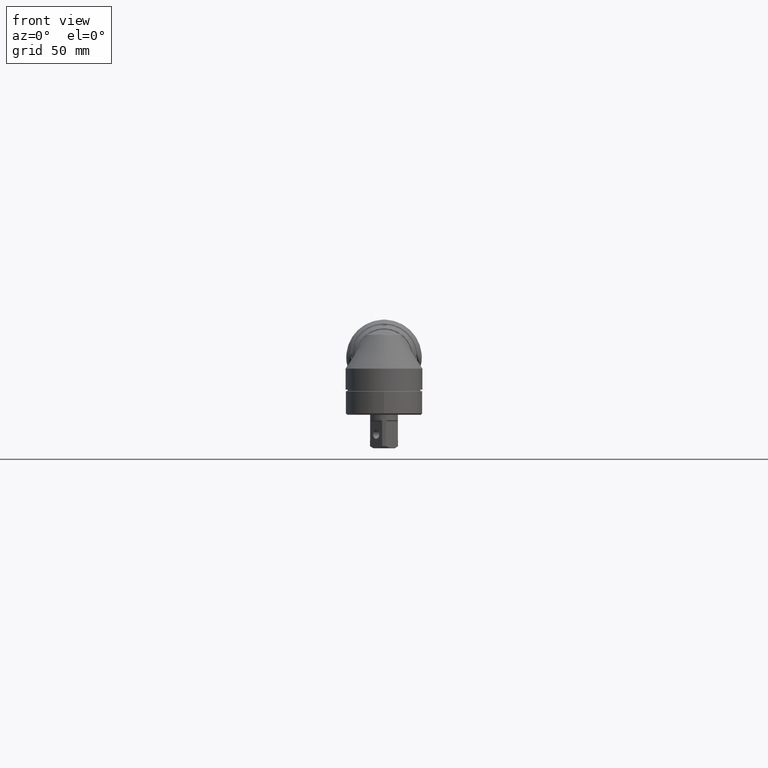
[diagram: clean part render]
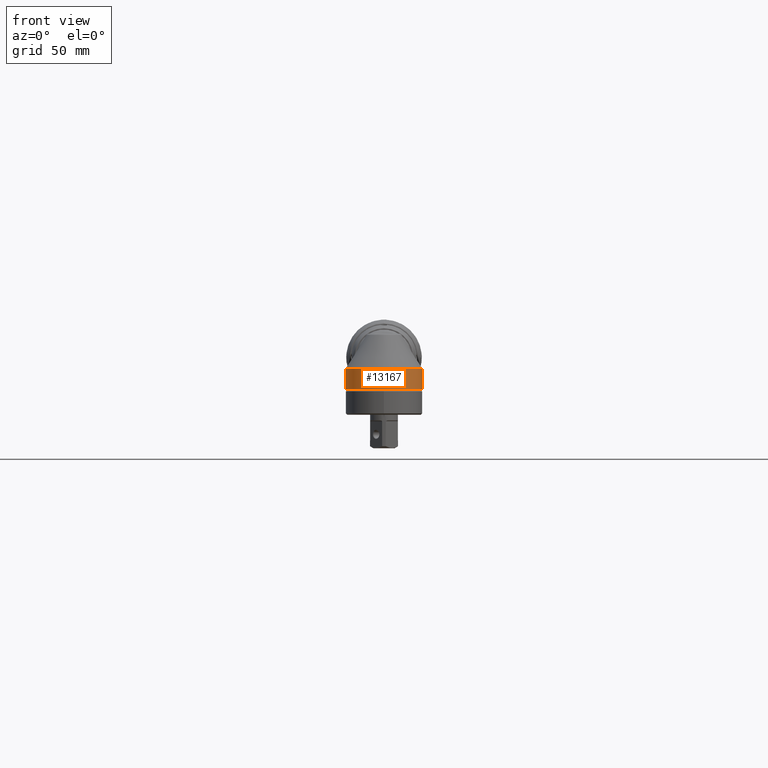
[diagram: same view with one face highlighted and labeled with its STEP entity id]
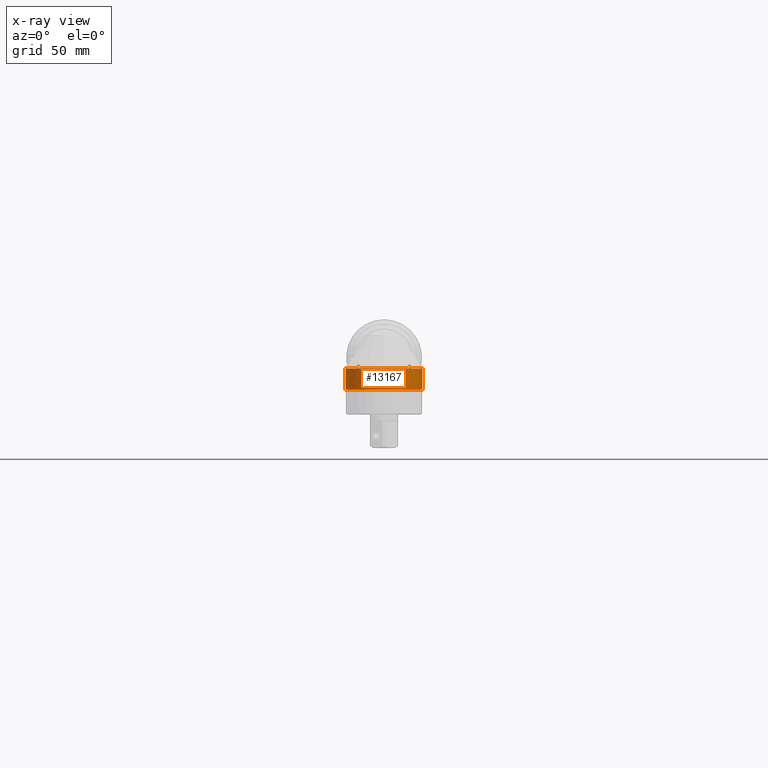
[diagram: x-ray of the same camera — body ghosted, the highlighted face saturated]
A machine part, front view. The second image highlights one B-rep face of the part: STEP entity #13167.
The next image is the same camera in x-ray: the body ghosted, the highlighted face saturated — about 0% of this face is hidden behind the body in this view.
In plain terms, the highlighted cylindrical surface (bore or boss wall) has radius 27.5 mm, axis along (-0, 0, 1).
Its self-contained STEP definition (entity closure, byte-faithful):
#1613=CYLINDRICAL_SURFACE('',#14081,27.5);
#1918=FACE_BOUND('',#3630,.T.);
#2745=FACE_OUTER_BOUND('',#3629,.T.);
#3629=EDGE_LOOP('',(#8843,#8844,#8845,#8846));
#3630=EDGE_LOOP('',(#8847));
#4588=CIRCLE('',#13944,27.5);
#4653=CIRCLE('',#14080,27.5);
#5400=B_SPLINE_CURVE_WITH_KNOTS('',3,(#19982,#19983,#19984,#19985,#19986,
#19987,#19988,#19989),.UNSPECIFIED.,.F.,.F.,(4,2,2,4),(0.,0.122761258447741,
0.219470052528336,0.31241955934614),.UNSPECIFIED.);
#5425=B_SPLINE_CURVE_WITH_KNOTS('',3,(#20583,#20584,#20585,#20586,#20587,
#20588,#20589,#20590,#20591,#20592,#20593,#20594,#20595,#20596,#20597,#20598,
#20599,#20600,#20601,#20602,#20603,#20604,#20605,#20606,#20607,#20608,#20609,
#20610,#20611,#20612,#20613,#20614,#20615,#20616,#20617,#20618,#20619,#20620,
#20621,#20622,#20623,#20624,#20625),.UNSPECIFIED.,.F.,.F.,(4,3,3,3,3,3,
3,3,3,3,3,3,3,3,4),(-16.9105149574467,-16.4117864694954,-16.2703327106149,
-15.4990352647358,-15.3890148739619,-14.7507998875395,-14.5066963858524,
-14.0658769010882,-13.6248385555347,-13.4621669532757,-12.8688074399982,
-12.7429245939191,-11.9063201572751,-11.8615470319402,-11.221186578716),
 .UNSPECIFIED.);
#5431=B_SPLINE_CURVE_WITH_KNOTS('',3,(#20800,#20801,#20802,#20803,#20804,
#20805,#20806,#20807,#20808,#20809),.UNSPECIFIED.,.F.,.F.,(4,2,2,2,4),(0.470813971666849,
0.485401021149331,0.61881696161064,0.742661706200234,0.878901397523358),
 .UNSPECIFIED.);
#5547=VERTEX_POINT('',#19884);
#5549=VERTEX_POINT('',#19898);
#5552=VERTEX_POINT('',#19981);
#5635=VERTEX_POINT('',#20563);
#5650=VERTEX_POINT('',#20895);
#6777=EDGE_CURVE('',#5549,#5547,#4588,.T.);
#6780=EDGE_CURVE('',#5547,#5552,#5400,.T.);
#6883=EDGE_CURVE('',#5552,#5635,#5425,.T.);
#6895=EDGE_CURVE('',#5635,#5549,#5431,.T.);
#6904=EDGE_CURVE('',#5650,#5650,#4653,.T.);
#8843=ORIENTED_EDGE('',*,*,#6883,.F.);
#8844=ORIENTED_EDGE('',*,*,#6780,.F.);
#8845=ORIENTED_EDGE('',*,*,#6777,.F.);
#8846=ORIENTED_EDGE('',*,*,#6895,.F.);
#8847=ORIENTED_EDGE('',*,*,#6904,.T.);
#13167=ADVANCED_FACE('',(#2745,#1918),#1613,.T.);
#13944=AXIS2_PLACEMENT_3D('',#19911,#15680,#15681);
#14080=AXIS2_PLACEMENT_3D('',#20896,#15971,#15972);
#14081=AXIS2_PLACEMENT_3D('',#20897,#15973,#15974);
#15680=DIRECTION('center_axis',(-1.22464679914735E-16,0.,1.));
#15681=DIRECTION('ref_axis',(1.,0.,1.22464679914735E-16));
#15971=DIRECTION('center_axis',(-1.22464679914735E-16,0.,1.));
#15972=DIRECTION('ref_axis',(1.,0.,1.22464679914735E-16));
#15973=DIRECTION('center_axis',(-1.22464679914735E-16,0.,1.));
#15974=DIRECTION('ref_axis',(-1.,0.,0.));
#19884=CARTESIAN_POINT('',(20.2605229686664,18.5946553889908,-7.99999999995198));
#19898=CARTESIAN_POINT('',(-20.2605229686627,18.5946553889999,-7.99999999996319));
#19911=CARTESIAN_POINT('Origin',(9.79717439317885E-16,1.77635683940025E-14,
-8.00000000000001));
#19981=CARTESIAN_POINT('',(18.4712476444672,20.3730952596008,-6.52394095543169));
#19982=CARTESIAN_POINT('Ctrl Pts',(20.2605229686507,18.5946553890299,-8.00000000000001));
#19983=CARTESIAN_POINT('Ctrl Pts',(19.9838316600495,18.8961350613258,-8.00000000000001));
#19984=CARTESIAN_POINT('Ctrl Pts',(19.700269991002,19.190972530852,-7.94036312622453));
#19985=CARTESIAN_POINT('Ctrl Pts',(19.22011227652,19.670452204488,-7.66944577037479));
#19986=CARTESIAN_POINT('Ctrl Pts',(19.0277243897575,19.8556936094131,-7.49838543138955));
#19987=CARTESIAN_POINT('Ctrl Pts',(18.6995729194588,20.1649400390143,-7.05655749506773));
#19988=CARTESIAN_POINT('Ctrl Pts',(18.5711385372075,20.2825292757027,-6.80226098252906));
#19989=CARTESIAN_POINT('Ctrl Pts',(18.4712476444672,20.3730952596007,-6.52394095543169));
#20563=CARTESIAN_POINT('',(-18.4712476444672,20.3730952596007,-6.52394095543167));
#20583=CARTESIAN_POINT('Ctrl Pts',(18.4711656565271,20.3730105492996,-6.52393928281111));
#20584=CARTESIAN_POINT('Ctrl Pts',(18.0323906114884,20.7705061454066,-8.05103776865215));
#20585=CARTESIAN_POINT('Ctrl Pts',(17.4486176766897,21.2732021134993,-9.49051346897047));
#20586=CARTESIAN_POINT('Ctrl Pts',(16.7444605287774,21.8142744947751,-10.8296220001541));
#20587=CARTESIAN_POINT('Ctrl Pts',(16.5447412871036,21.9677382009939,-11.2094317360347));
#20588=CARTESIAN_POINT('Ctrl Pts',(16.3350303558564,22.1245320506927,-11.5815992646434));
#20589=CARTESIAN_POINT('Ctrl Pts',(16.1158685911375,22.2831187734507,-11.9456960468437));
#20590=CARTESIAN_POINT('Ctrl Pts',(14.9208568028338,23.1478362272788,-13.9309873560771));
#20591=CARTESIAN_POINT('Ctrl Pts',(13.4440145039215,24.0657318392733,-15.6749834630757));
#20592=CARTESIAN_POINT('Ctrl Pts',(11.7137283970951,24.8801780348302,-17.1277713390953));
#20593=CARTESIAN_POINT('Ctrl Pts',(11.4669147266482,24.9963533044078,-17.3350017541386));
#20594=CARTESIAN_POINT('Ctrl Pts',(11.2150473116511,25.1103909104923,-17.5361089264828));
#20595=CARTESIAN_POINT('Ctrl Pts',(10.9581399002547,25.2218899827256,-17.7310319115443));
#20596=CARTESIAN_POINT('Ctrl Pts',(9.46785106449619,25.8686826215348,-18.8617565834835));
#20597=CARTESIAN_POINT('Ctrl Pts',(7.80867396534012,26.4307232763146,-19.7856748097847));
#20598=CARTESIAN_POINT('Ctrl Pts',(6.02653977684319,26.8331257460768,-20.4334770301564));
#20599=CARTESIAN_POINT('Ctrl Pts',(5.34491179075205,26.9870360334348,-20.6812474425683));
#20600=CARTESIAN_POINT('Ctrl Pts',(4.64678909359814,27.1171100307443,-20.888983714668));
#20601=CARTESIAN_POINT('Ctrl Pts',(3.93561310416057,27.2189869530659,-21.0520138388896));
#20602=CARTESIAN_POINT('Ctrl Pts',(2.65132086306624,27.4029635535521,-21.3464252457876));
#20603=CARTESIAN_POINT('Ctrl Pts',(1.32432054690612,27.4949196033414,-21.4949349174173));
#20604=CARTESIAN_POINT('Ctrl Pts',(1.27775652669637E-6,27.4952399272793,
-21.4952544311516));
#20605=CARTESIAN_POINT('Ctrl Pts',(-1.32497549762952,27.4955604102537,-21.4955741035201));
#20606=CARTESIAN_POINT('Ctrl Pts',(-2.65200534614765,27.4042217527229,-21.346380019312));
#20607=CARTESIAN_POINT('Ctrl Pts',(-3.93702400673285,27.2203378203728,-21.0518674144527));
#20608=CARTESIAN_POINT('Ctrl Pts',(-4.41098743090559,27.1525144798252,-20.9432400404365));
#20609=CARTESIAN_POINT('Ctrl Pts',(-4.87927389568907,27.0721001039621,-20.8148435162503));
#20610=CARTESIAN_POINT('Ctrl Pts',(-5.3409741238438,26.9803472751502,-20.6681012952338));
#20611=CARTESIAN_POINT('Ctrl Pts',(-7.02506783690598,26.6456704594698,-20.1328456536189));
#20612=CARTESIAN_POINT('Ctrl Pts',(-8.61120690049929,26.1625124741212,-19.3500350155546));
#20613=CARTESIAN_POINT('Ctrl Pts',(-10.0565955118869,25.5948329840685,-18.3779028708387));
#20614=CARTESIAN_POINT('Ctrl Pts',(-10.3632386650183,25.4743982252596,-18.1716623734615));
#20615=CARTESIAN_POINT('Ctrl Pts',(-10.6638412910306,25.3500276821994,-17.956731529024));
#20616=CARTESIAN_POINT('Ctrl Pts',(-10.957860925917,25.222336106667,-17.7337088303583));
#20617=CARTESIAN_POINT('Ctrl Pts',(-12.9118851529483,24.3737110402676,-16.2515229330144));
#20618=CARTESIAN_POINT('Ctrl Pts',(-14.5733403300407,23.3781241879884,-14.4104482248378));
#20619=CARTESIAN_POINT('Ctrl Pts',(-15.9042422352439,22.4346422954207,-12.2888895947413));
#20620=CARTESIAN_POINT('Ctrl Pts',(-15.97546901244,22.3841493370082,-12.1753487069693));
#20621=CARTESIAN_POINT('Ctrl Pts',(-16.045758052759,22.3338023932321,-12.0609850172942));
#20622=CARTESIAN_POINT('Ctrl Pts',(-16.115108279722,22.283629146969,-11.9458049748688));
#20623=CARTESIAN_POINT('Ctrl Pts',(-17.1069787921561,21.5660343291749,-10.2984608679244));
#20624=CARTESIAN_POINT('Ctrl Pts',(-17.9077400187186,20.8834575208281,-8.48480174408325));
#20625=CARTESIAN_POINT('Ctrl Pts',(-18.4711640860837,20.37302405505,-6.52393488024179));
#20800=CARTESIAN_POINT('Ctrl Pts',(-18.4712476444672,20.3730952596008,-6.52394095543167));
#20801=CARTESIAN_POINT('Ctrl Pts',(-18.4832645205306,20.3622001702267,-6.5574228593354));
#20802=CARTESIAN_POINT('Ctrl Pts',(-18.4957094146417,20.3508976880569,-6.59060262519755));
#20803=CARTESIAN_POINT('Ctrl Pts',(-18.6264332579599,20.2319393390873,-6.92391339893731));
#20804=CARTESIAN_POINT('Ctrl Pts',(-18.7785165639586,20.091936514127,-7.19015752252227));
#20805=CARTESIAN_POINT('Ctrl Pts',(-19.1441834463716,19.743590052807,-7.60794517044439));
#20806=CARTESIAN_POINT('Ctrl Pts',(-19.3414774291188,19.5511512058955,-7.75382713843757));
#20807=CARTESIAN_POINT('Ctrl Pts',(-19.7851465669401,19.1025445918463,-7.95698386778415));
#20808=CARTESIAN_POINT('Ctrl Pts',(-20.0255623513075,18.8506657793713,-8.00000000000001));
#20809=CARTESIAN_POINT('Ctrl Pts',(-20.2605229686507,18.5946553890299,-8.00000000000001));
#20895=CARTESIAN_POINT('',(-27.5,1.77635683940025E-14,-23.));
#20896=CARTESIAN_POINT('Origin',(2.81668763803891E-15,1.77635683940025E-14,
-23.));
#20897=CARTESIAN_POINT('Origin',(1.8982025386784E-15,1.77635683940025E-14,
-15.5));